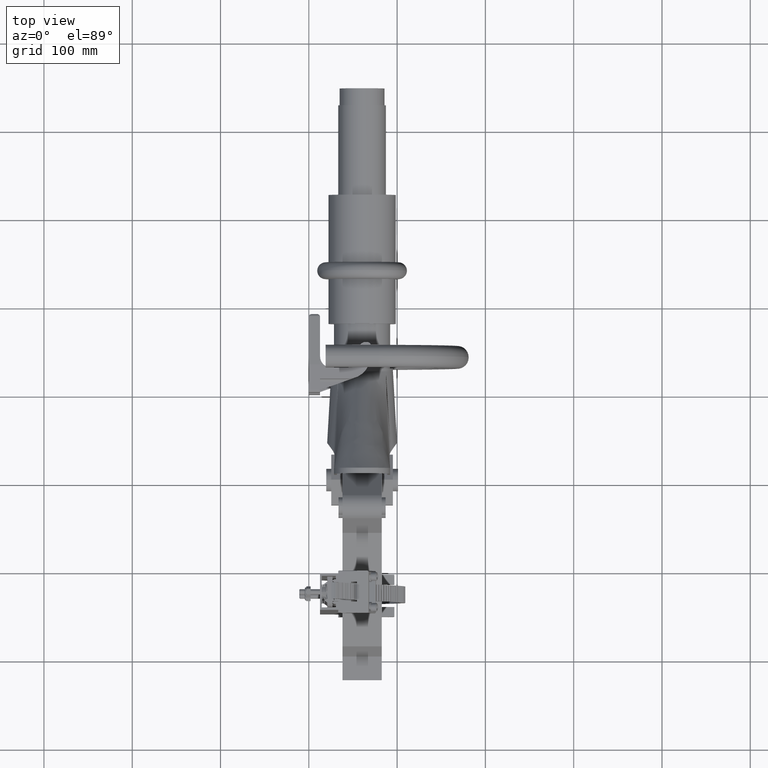
[diagram: clean part render]
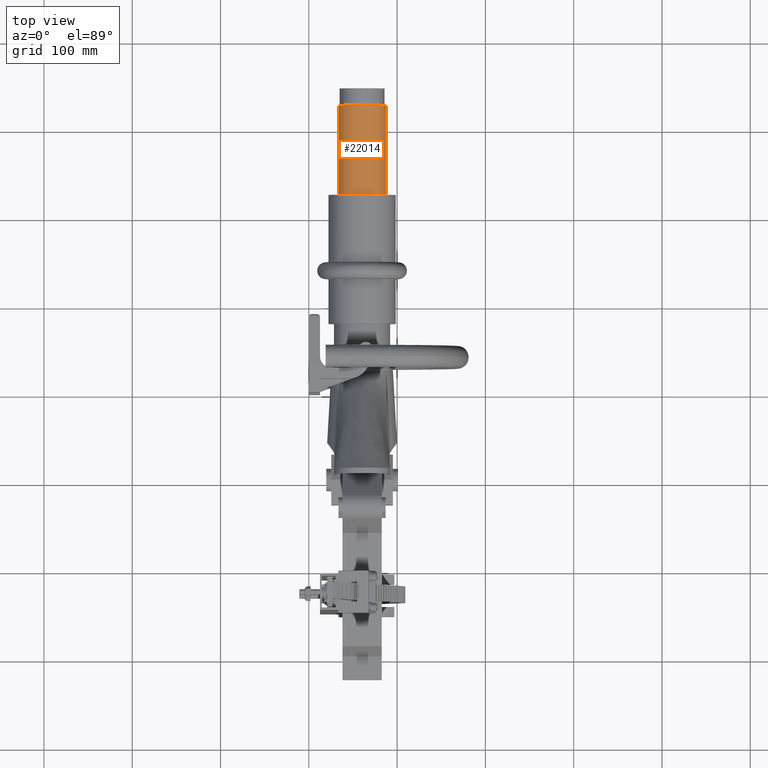
[diagram: same view with one face highlighted and labeled with its STEP entity id]
A machine part, top view. The second image highlights one B-rep face of the part: STEP entity #22014.
In plain terms, the highlighted cylindrical surface (edge-blend (fillet) strip) has radius 26.9875 mm, axis along (0, 1, -0).
Its self-contained STEP definition (entity closure, byte-faithful):
#2687 = AXIS2_PLACEMENT_3D ( 'NONE', #40198, #40197, #40192 ) ;
#7901 = ORIENTED_EDGE ( 'NONE', *, *, #27051, .F. ) ;
#7902 = ORIENTED_EDGE ( 'NONE', *, *, #27049, .T. ) ;
#7903 = ORIENTED_EDGE ( 'NONE', *, *, #27011, .T. ) ;
#7904 = ORIENTED_EDGE ( 'NONE', *, *, #27053, .F. ) ;
#11502 = CARTESIAN_POINT ( 'NONE',  ( 0.0000000000000000000, -0.7500000000000001100, 1.062500000000000000 ) ) ;
#11567 = CARTESIAN_POINT ( 'NONE',  ( 0.0000000000000000000, -4.750000000000000000, 1.062500000000000000 ) ) ;
#13150 = FACE_OUTER_BOUND ( 'NONE', #25310, .T. ) ;
#13161 = CYLINDRICAL_SURFACE ( 'NONE', #2687, 1.062500000000000000 ) ;
#16654 = VERTEX_POINT ( 'NONE', #11502 ) ;
#16719 = VERTEX_POINT ( 'NONE', #11567 ) ;
#19151 = CIRCLE ( 'NONE', #42966, 1.062500000000000000 ) ;
#19160 = VECTOR ( 'NONE', #25712, 39.37007874015748100 ) ;
#19200 = VECTOR ( 'NONE', #25716, 39.37007874015748100 ) ;
#19204 = LINE ( 'NONE', #25706, #19160 ) ;
#19212 = LINE ( 'NONE', #25705, #19200 ) ;
#19214 = CIRCLE ( 'NONE', #42981, 1.062500000000000000 ) ;
#22014 = ADVANCED_FACE ( 'NONE', ( #13150 ), #13161, .T. ) ;
#25310 = EDGE_LOOP ( 'NONE', ( #7901, #7902, #7903, #7904 ) ) ;
#25667 = CARTESIAN_POINT ( 'NONE',  ( 0.0000000000000000000, -0.7500000000000001100, 0.0000000000000000000 ) ) ;
#25668 = DIRECTION ( 'NONE',  ( 0.0000000000000000000, -1.000000000000000000, 0.0000000000000000000 ) ) ;
#25669 = DIRECTION ( 'NONE',  ( 0.0000000000000000000, 0.0000000000000000000, -1.000000000000000000 ) ) ;
#25705 = CARTESIAN_POINT ( 'NONE',  ( 0.0000000000000000000, -4.750000000000000000, 1.062500000000000000 ) ) ;
#25706 = CARTESIAN_POINT ( 'NONE',  ( 1.301187224094062700E-016, -4.750000000000000000, -1.062500000000000000 ) ) ;
#25711 = CARTESIAN_POINT ( 'NONE',  ( 0.0000000000000000000, -4.750000000000000000, 0.0000000000000000000 ) ) ;
#25712 = DIRECTION ( 'NONE',  ( -0.0000000000000000000, 1.000000000000000000, -0.0000000000000000000 ) ) ;
#25713 = DIRECTION ( 'NONE',  ( 0.0000000000000000000, -1.000000000000000000, 0.0000000000000000000 ) ) ;
#25714 = DIRECTION ( 'NONE',  ( 0.0000000000000000000, 0.0000000000000000000, -1.000000000000000000 ) ) ;
#25716 = DIRECTION ( 'NONE',  ( -0.0000000000000000000, 1.000000000000000000, -0.0000000000000000000 ) ) ;
#27011 = EDGE_CURVE ( 'NONE', #42223, #16654, #19151, .T. ) ;
#27049 = EDGE_CURVE ( 'NONE', #42232, #42223, #19204, .T. ) ;
#27051 = EDGE_CURVE ( 'NONE', #42232, #16719, #19214, .T. ) ;
#27053 = EDGE_CURVE ( 'NONE', #16719, #16654, #19212, .T. ) ;
#34738 = CARTESIAN_POINT ( 'NONE',  ( 1.301187224094062700E-016, -0.7500000000000001100, -1.062500000000000000 ) ) ;
#34747 = CARTESIAN_POINT ( 'NONE',  ( 1.301187224094062700E-016, -4.750000000000000000, -1.062500000000000000 ) ) ;
#40192 = DIRECTION ( 'NONE',  ( 0.0000000000000000000, 0.0000000000000000000, 1.000000000000000000 ) ) ;
#40197 = DIRECTION ( 'NONE',  ( -0.0000000000000000000, 1.000000000000000000, -0.0000000000000000000 ) ) ;
#40198 = CARTESIAN_POINT ( 'NONE',  ( 0.0000000000000000000, -4.750000000000000000, 0.0000000000000000000 ) ) ;
#42223 = VERTEX_POINT ( 'NONE', #34738 ) ;
#42232 = VERTEX_POINT ( 'NONE', #34747 ) ;
#42966 = AXIS2_PLACEMENT_3D ( 'NONE', #25667, #25668, #25669 ) ;
#42981 = AXIS2_PLACEMENT_3D ( 'NONE', #25711, #25713, #25714 ) ;